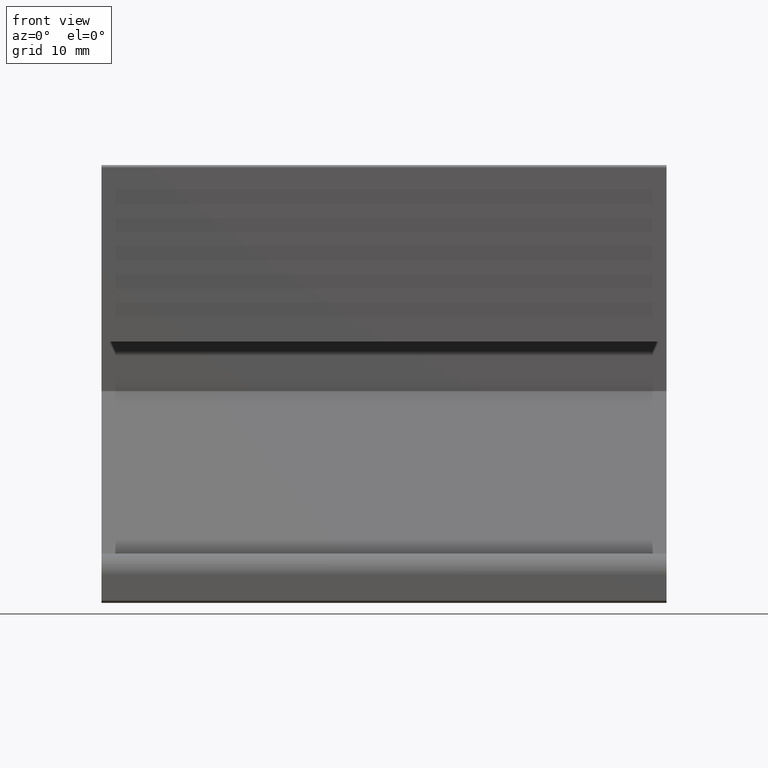
[diagram: clean part render]
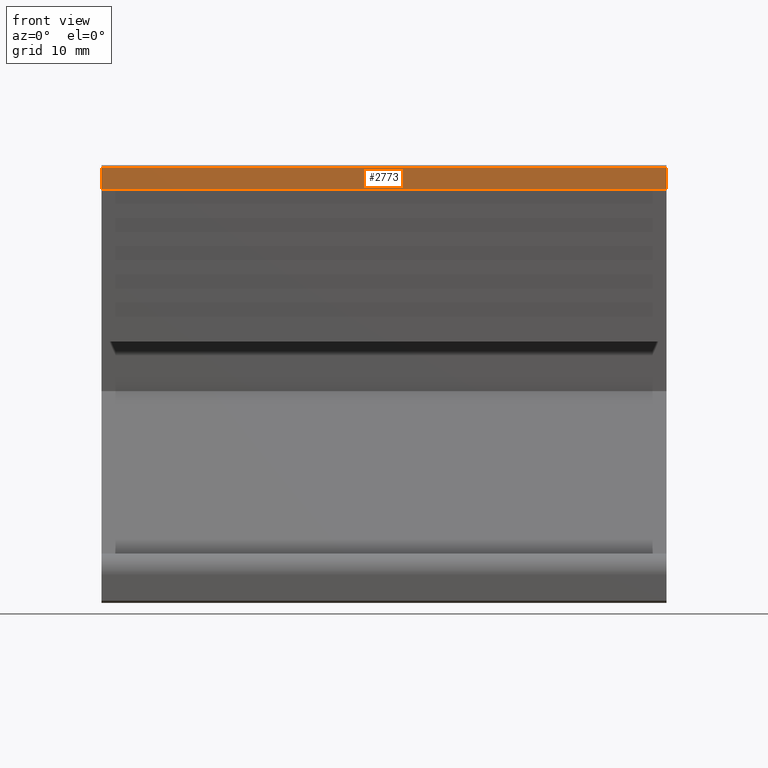
[diagram: same view with one face highlighted and labeled with its STEP entity id]
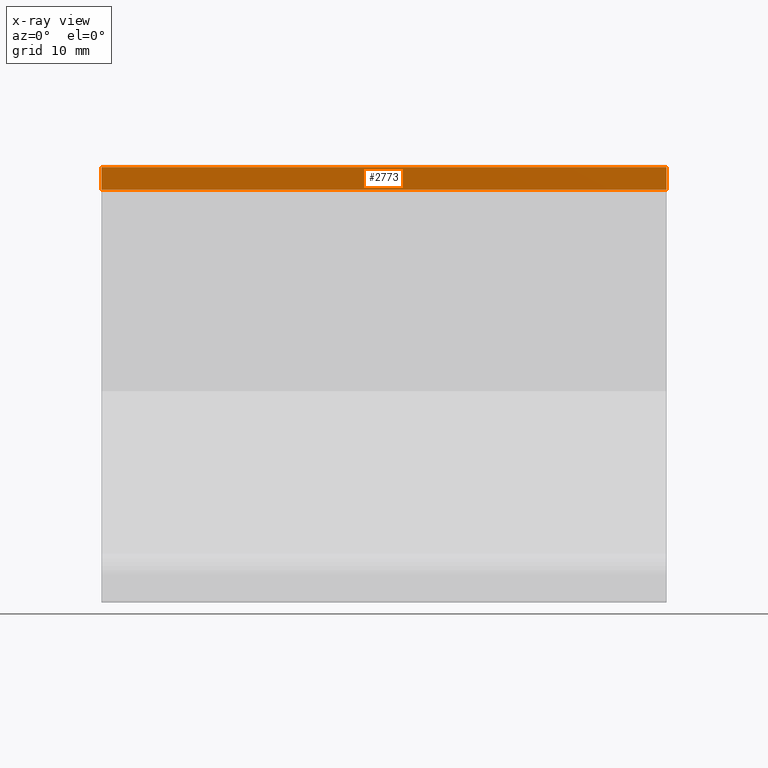
[diagram: x-ray of the same camera — body ghosted, the highlighted face saturated]
A machine part, front view. The second image highlights one B-rep face of the part: STEP entity #2773.
The next image is the same camera in x-ray: the body ghosted, the highlighted face saturated — about 0% of this face is hidden behind the body in this view.
In plain terms, the highlighted face is a freeform B-spline surface patch.
Its self-contained STEP definition (entity closure, byte-faithful):
#1025=CARTESIAN_POINT('',(40.0,-2.0,61.700000000000003));
#1026=VERTEX_POINT('',#1025);
#1032=CARTESIAN_POINT('',(40.0,-2.0,58.500000000000000));
#1033=VERTEX_POINT('',#1032);
#1034=CARTESIAN_POINT('',(40.0,-2.0,61.700000000000003));
#1035=CARTESIAN_POINT('',(40.0,-2.0,58.500000000000000));
#1036=QUASI_UNIFORM_CURVE('',1,(#1034,#1035),.UNSPECIFIED.,.F.,.U.);
#1037=EDGE_CURVE('',#1026,#1033,#1036,.T.);
#1699=CARTESIAN_POINT('',(-40.0,-2.0,58.500000000000000));
#1700=VERTEX_POINT('',#1699);
#1706=CARTESIAN_POINT('',(-40.0,-2.0,61.700000000000003));
#1707=VERTEX_POINT('',#1706);
#1708=CARTESIAN_POINT('',(-40.0,-2.0,61.700000000000003));
#1709=CARTESIAN_POINT('',(-40.0,-2.0,58.500000000000000));
#1710=QUASI_UNIFORM_CURVE('',1,(#1708,#1709),.UNSPECIFIED.,.F.,.U.);
#1711=EDGE_CURVE('',#1707,#1700,#1710,.T.);
#1806=CARTESIAN_POINT('',(-40.0,-2.0,61.700000000000003));
#1807=CARTESIAN_POINT('',(40.0,-2.0,61.700000000000003));
#1808=QUASI_UNIFORM_CURVE('',1,(#1806,#1807),.UNSPECIFIED.,.F.,.U.);
#1809=EDGE_CURVE('',#1707,#1026,#1808,.T.);
#2752=CARTESIAN_POINT('',(-40.0,-2.0,58.500000000000000));
#2753=CARTESIAN_POINT('',(40.0,-2.0,58.500000000000000));
#2754=QUASI_UNIFORM_CURVE('',1,(#2752,#2753),.UNSPECIFIED.,.F.,.U.);
#2755=EDGE_CURVE('',#1700,#1033,#2754,.T.);
#2762=CARTESIAN_POINT('',(-43.995999844944478,-2.0,61.859840804859161));
#2763=CARTESIAN_POINT('',(-43.995999844944478,-2.0,58.340159881786342));
#2764=CARTESIAN_POINT('',(43.996001990711690,-2.0,61.859840804859161));
#2765=CARTESIAN_POINT('',(43.996001990711690,-2.0,58.340159881786342));
#2766=B_SPLINE_SURFACE_WITH_KNOTS('',1,1,((#2762,#2764),(#2763,#2765)),.UNSPECIFIED.,.F.,.F.,.U.,(2,2),(2,2),(0.0,3.519680923072819),(0.0,87.992001835656168),.UNSPECIFIED.);
#2767=ORIENTED_EDGE('',*,*,#1037,.F.);
#2768=ORIENTED_EDGE('',*,*,#1809,.F.);
#2769=ORIENTED_EDGE('',*,*,#1711,.T.);
#2770=ORIENTED_EDGE('',*,*,#2755,.T.);
#2771=EDGE_LOOP('',(#2767,#2768,#2769,#2770));
#2772=FACE_OUTER_BOUND('',#2771,.T.);
#2773=ADVANCED_FACE('',(#2772),#2766,.T.);